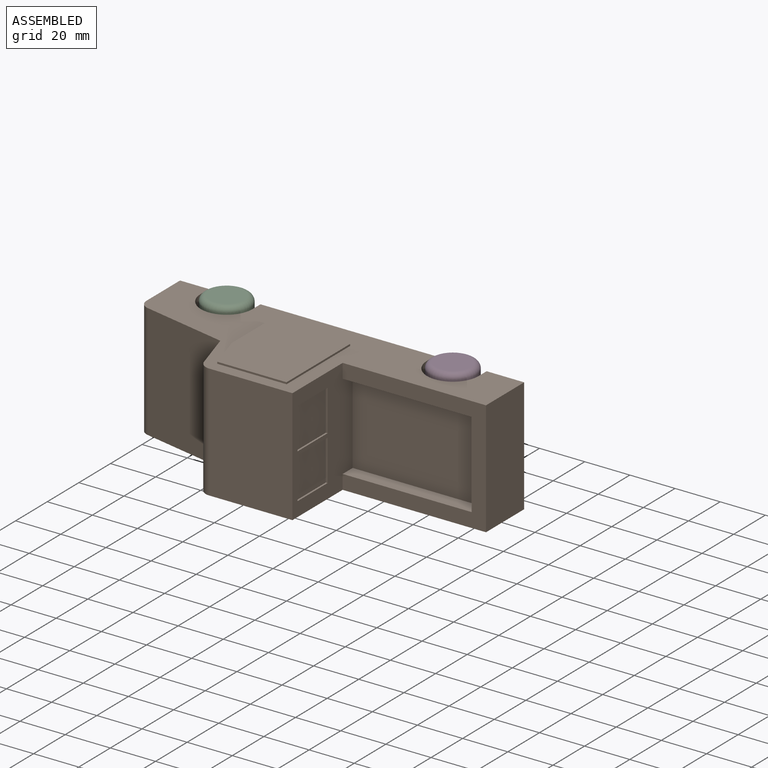
[diagram: assembled view]
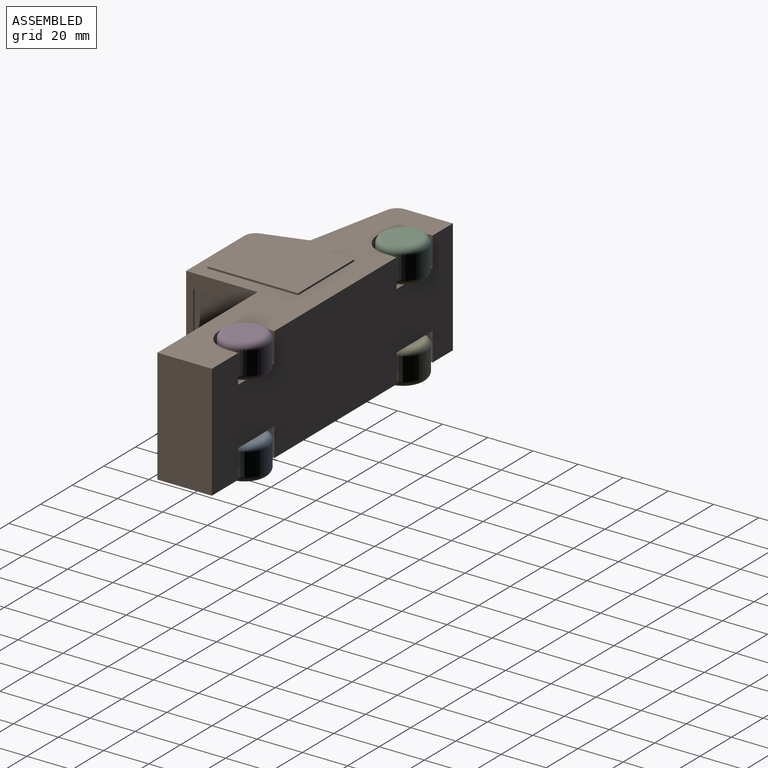
[diagram: assembled view, second angle]
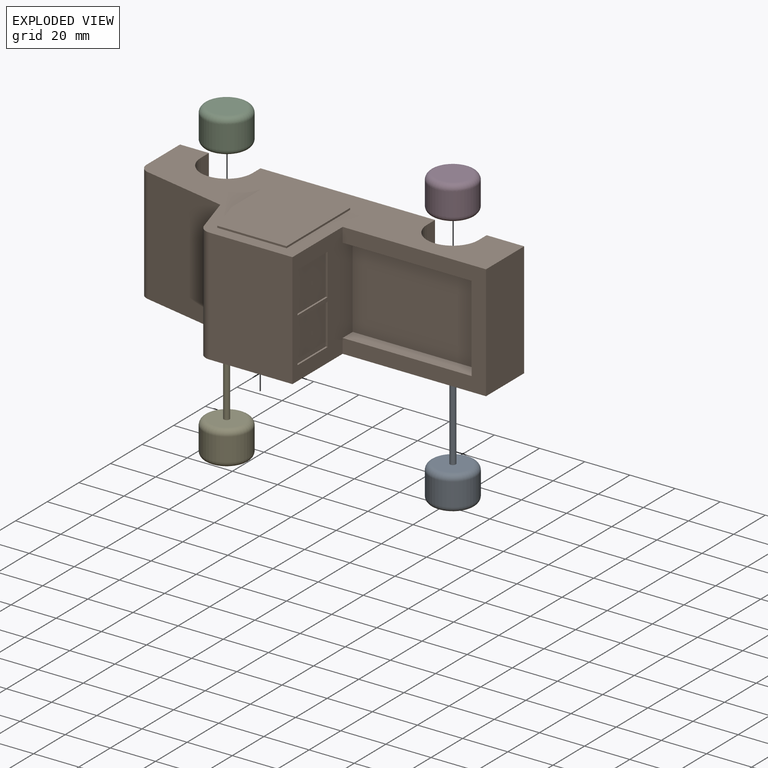
[diagram: exploded view]
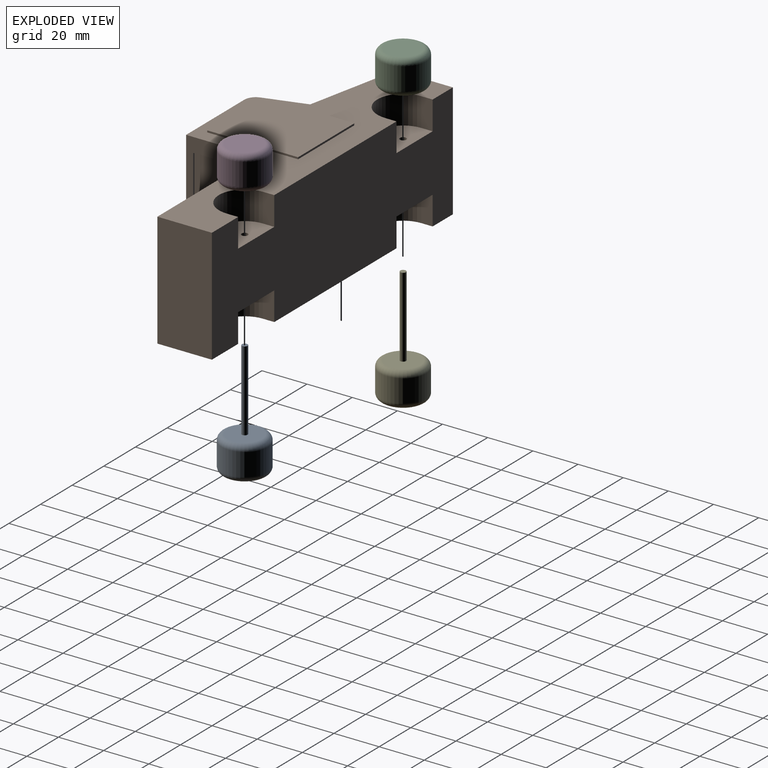
[diagram: exploded view, second angle]
ASSEMBLY  parts=5 mates=4
PART A: 7 faces, bbox 22x22x50.8 mm
  f0: cylinder r=10.16mm len=20.32mm, axis (0,0,-1), area 648.6mm2, adj f3,f4
  f1: plane 15.24x15.24mm, normal (0,0,1), area 177.3mm2, adj f4,f5
  f2: plane 15.24x15.24mm, normal (0,0,-1), area 182.4mm2, adj f3
  f3: torus R=7.62mm, axis (0,0,1), area 231.6mm2, adj f0,f2
  f4: torus R=7.62mm, axis (0,0,1), area 231.6mm2, adj f0,f1
  f5: cylinder r=1.27mm len=35.56mm, axis (0,0,-1), area 283.8mm2, adj f1,f6
  f6: plane 2.54x2.54mm, normal (0,0,1), area 5.1mm2, adj f5
PART B: 110 faces, bbox 154.9x52.4x55.9 mm
  f0: cylinder r=11.43mm len=22.86mm, axis (0,1,0), area 456mm2, adj f3,f98,f103,f104
  f1: cylinder r=11.43mm len=22.86mm, axis (0,1,0), area 456mm2, adj f3,f95,f105,f106
  f2: plane 152.4x55.88mm, normal (0,-1,0), area 3295.4mm2, adj f4,f5,f6,f7,f8,f9,f10,f69
  f3: plane 152.4x55.88mm, normal (0,1,0), area 3295.6mm2, adj f0,f1,f4,f5,f6,f7,f8,f9
  f4: plane 50.8x38.1mm, normal (1,0,0), area 1162.9mm2, adj f2,f3,f7,f8,f11,f13,f14,f83
  f5: plane 50.8x18.27mm, normal (-0.96,0,0.29), area 251mm2, adj f2,f3,f9,f54,f55,f56,f57,f58
  f6: plane 50.8x24.13mm, normal (1,0,0), area 1225.8mm2, adj f2,f3,f7,f107
  f7: plane 63.5x50.8mm, normal (0,0,1), area 1048.4mm2, adj f2,f3,f4,f6,f11,f12,f13
  f8: plane 50.8x36.87mm, normal (0,0,1), area 1873mm2, adj f2,f3,f4,f69
  f9: plane 50.8x37.6mm, normal (-0.2,0,0.98), area 1951.5mm2, adj f2,f3,f5,f70
  f10: plane 50.8x21.16mm, normal (-1,0,0), area 877.7mm2, adj f2,f3,f15,f16,f17,f42,f50,f52
  f11: plane 57.15x6.35mm, normal (0,1,0), area 362.9mm2, adj f4,f7,f12,f14
  f12: plane 38.1x6.35mm, normal (-1,0,0), area 241.9mm2, adj f7,f11,f13,f14
  f13: plane 57.15x6.35mm, normal (0,-1,0), area 362.9mm2, adj f4,f7,f12,f14
  f14: plane 57.15x38.1mm, normal (0,0,1), area 2177.4mm2, adj f4,f11,f12,f13
  f15: plane 6.6x2.54mm, normal (0,-1,0), area 16.8mm2, adj f10,f16,f42,f43
  f16: plane 23.11x2.54mm, normal (0,0,1), area 58.7mm2, adj f10,f15,f17,f43
  f17: plane 6.6x2.54mm, normal (0,1,0), area 16.8mm2, adj f10,f16,f42,f43
  f18: plane 3.52x2.54mm, normal (0,0,-1), area 8.9mm2, adj f19,f36,f43,f44
  f19: plane 5.08x2.54mm, normal (0,1,0), area 12.9mm2, adj f18,f20,f43,f44
  f20: plane 3.52x2.54mm, normal (0,0,1), area 8.9mm2, adj f19,f36,f43,f44
  f21: plane 5.08x2.54mm, normal (0,1,0), area 12.9mm2, adj f22,f37,f43,f45
  f22: plane 3.58x2.54mm, normal (0,0,1), area 9.1mm2, adj f21,f23,f43,f45
  f23: plane 5.08x2.54mm, normal (0,-1,0), area 12.9mm2, adj f22,f37,f43,f45
  f24: plane 5.08x2.54mm, normal (0,1,0), area 12.9mm2, adj f25,f38,f43,f46
  f25: plane 2.54x2.4mm, normal (0,0,1), area 6.1mm2, adj f24,f26,f43,f46
  f26: plane 5.08x2.54mm, normal (0,-1,0), area 12.9mm2, adj f25,f38,f43,f46
  f27: plane 5.08x2.54mm, normal (0,1,0), area 12.9mm2, adj f28,f39,f43,f47
  f28: plane 2.54x2.4mm, normal (0,0,1), area 6.1mm2, adj f27,f29,f43,f47
  f29: plane 5.08x2.54mm, normal (0,-1,0), area 12.9mm2, adj f28,f39,f43,f47
  f30: plane 5.08x2.54mm, normal (0,1,0), area 12.9mm2, adj f31,f40,f43,f48
  f31: plane 2.54x2.4mm, normal (0,0,1), area 6.1mm2, adj f30,f32,f43,f48
  f32: plane 5.08x2.54mm, normal (0,-1,0), area 12.9mm2, adj f31,f40,f43,f48
  f33: plane 5.08x2.54mm, normal (0,1,0), area 12.9mm2, adj f34,f41,f43,f49
  f34: plane 2.54x2.4mm, normal (0,0,1), area 6.1mm2, adj f33,f35,f43,f49
  f35: plane 5.08x2.54mm, normal (0,-1,0), area 12.9mm2, adj f34,f41,f43,f49
  f36: plane 5.08x2.54mm, normal (0,-1,0), area 12.9mm2, adj f18,f20,f43,f44
  f37: plane 3.58x2.54mm, normal (0,0,-1), area 9.1mm2, adj f21,f23,f43,f45
  f38: plane 2.54x2.4mm, normal (0,0,-1), area 6.1mm2, adj f24,f26,f43,f46
  f39: plane 2.54x2.4mm, normal (0,0,-1), area 6.1mm2, adj f27,f29,f43,f47
  f40: plane 2.54x2.4mm, normal (0,0,-1), area 6.1mm2, adj f30,f32,f43,f48
  f41: plane 2.54x2.4mm, normal (0,0,-1), area 6.1mm2, adj f33,f35,f43,f49
  f42: plane 23.11x2.54mm, normal (0,0,-1), area 58.7mm2, adj f10,f15,f17,f43
  f43: plane 23.11x6.6mm, normal (-1,0,0), area 67.9mm2, adj f15,f16,f17,f18,f19,f20,f21,f22
  f44: plane 5.08x3.52mm, normal (-1,0,0), area 17.9mm2, adj f18,f19,f20,f36
  f45: plane 5.08x3.58mm, normal (-1,0,0), area 18.2mm2, adj f21,f22,f23,f37
  f46: plane 5.08x2.4mm, normal (-1,0,0), area 12.2mm2, adj f24,f25,f26,f38
  f47: plane 5.08x2.4mm, normal (-1,0,0), area 12.2mm2, adj f27,f28,f29,f39
  f48: plane 5.08x2.4mm, normal (-1,0,0), area 12.2mm2, adj f30,f31,f32,f40
  f49: plane 5.08x2.4mm, normal (-1,0,0), area 12.2mm2, adj f33,f34,f35,f41
  f50: cylinder r=2.67mm len=5.33mm, axis (1,0,0), area 21.3mm2, adj f10,f51
  f51: plane 5.33x5.33mm, normal (-1,0,0), area 22.3mm2, adj f50
  f52: cylinder r=2.67mm len=5.33mm, axis (1,0,0), area 21.3mm2, adj f10,f53
  f53: plane 5.33x5.33mm, normal (-1,0,0), area 22.3mm2, adj f52
  f54: plane 6.4x2.63mm, normal (-0.06,0.98,-0.2), area 5.3mm2, adj f5,f55,f67,f68
  f55: plane 4.05x1.92mm, normal (-0.1,0.94,-0.32), area 3.4mm2, adj f5,f54,f56,f68
  f56: plane 4.05x2.78mm, normal (0.17,-0.82,0.55), area 3.9mm2, adj f5,f55,f57,f68
  f57: plane 6.4x2.63mm, normal (0.06,-0.98,0.2), area 5.3mm2, adj f5,f56,f58,f68
  f58: plane 14.4x0.77mm, normal (0.29,0,0.96), area 11.5mm2, adj f5,f57,f59,f68
  f59: plane 6.4x2.63mm, normal (-0.06,0.98,-0.2), area 5.3mm2, adj f5,f58,f60,f68
  f60: plane 4.05x1.92mm, normal (-0.1,0.94,-0.32), area 3.4mm2, adj f5,f59,f61,f68
  f61: plane 4.05x2.78mm, normal (0.17,-0.82,0.55), area 3.9mm2, adj f5,f60,f62,f68
  f62: plane 6.4x2.63mm, normal (0.06,-0.98,0.2), area 5.3mm2, adj f5,f61,f63,f68
  f63: plane 14.42x0.77mm, normal (0.29,0,0.96), area 11.5mm2, adj f5,f62,f64,f68
  f64: plane 16.96x5.84mm, normal (0,1,0), area 14mm2, adj f5,f63,f65,f68,f69
  f65: plane 45.72x0.6mm, normal (-0.29,0,-0.96), area 28.9mm2, adj f64,f66,f68,f69
  f66: plane 16.96x5.84mm, normal (0,-1,0), area 14mm2, adj f5,f65,f67,f68,f69
  f67: plane 14.21x0.77mm, normal (0.29,0,0.96), area 11.4mm2, adj f5,f54,f66,f68
  f68: plane 45.72x16.78mm, normal (-0.96,0,0.29), area 778.1mm2, adj f54,f55,f56,f57,f58,f59,f60,f61
  f69: cylinder r=5.08mm len=50.8mm, axis (0,1,0), area 269.6mm2, adj f2,f3,f5,f8,f64,f65,f66
  f70: cylinder r=5.08mm len=50.8mm, axis (0,1,0), area 352.2mm2, adj f2,f3,f9,f10
  f71: plane 30.71x0.8mm, normal (0,0,1), area 24.6mm2, adj f2,f72,f75,f76
  f72: plane 16.08x4.86mm, normal (-0.96,0,0.29), area 13.4mm2, adj f2,f71,f73,f76
  f73: plane 24.13x0.8mm, normal (-1,0,0), area 19.3mm2, adj f2,f72,f74,f76
  f74: plane 35.56x0.8mm, normal (0,0,-1), area 28.5mm2, adj f2,f73,f75,f76
  f75: plane 40.21x0.8mm, normal (1,0,0), area 32.2mm2, adj f2,f71,f74,f76
  f76: plane 40.21x35.57mm, normal (0,-1,0), area 1390.9mm2, adj f71,f72,f73,f74,f75
  f77: plane 30.71x0.8mm, normal (0,0,1), area 24.6mm2, adj f3,f78,f81,f82
  f78: plane 40.21x0.8mm, normal (1,0,0), area 32.2mm2, adj f3,f77,f79,f82
  f79: plane 35.56x0.8mm, normal (0,0,-1), area 28.5mm2, adj f3,f78,f80,f82
  f80: plane 24.13x0.8mm, normal (-1,0,0), area 19.3mm2, adj f3,f79,f81,f82
  f81: plane 16.07x4.85mm, normal (-0.96,0,0.29), area 13.4mm2, adj f3,f77,f80,f82
  f82: plane 40.21x35.56mm, normal (0,1,0), area 1390.7mm2, adj f77,f78,f79,f80,f81
  f83: plane 18.16x0.8mm, normal (0,0,1), area 14.5mm2, adj f4,f84,f86,f87
  f84: plane 19.05x0.8mm, normal (0,-1,0), area 15.2mm2, adj f4,f83,f85,f87
  f85: plane 18.16x0.8mm, normal (0,0,-1), area 14.5mm2, adj f4,f84,f86,f87
  f86: plane 19.05x0.8mm, normal (0,1,0), area 15.2mm2, adj f4,f83,f85,f87
  f87: plane 19.05x18.16mm, normal (1,0,0), area 346mm2, adj f83,f84,f85,f86
  f88: plane 18.16x0.8mm, normal (0,0,1), area 14.5mm2, adj f4,f89,f91,f92
  f89: plane 19.05x0.8mm, normal (0,-1,0), area 15.2mm2, adj f4,f88,f90,f92
  f90: plane 18.16x0.8mm, normal (0,0,-1), area 14.5mm2, adj f4,f89,f91,f92
  f91: plane 19.05x0.8mm, normal (0,1,0), area 15.2mm2, adj f4,f88,f90,f92
  f92: plane 19.05x18.16mm, normal (1,0,0), area 346mm2, adj f88,f89,f90,f91
  f93: cylinder r=11.43mm len=22.86mm, axis (0,1,0), area 456mm2, adj f2,f97,f101,f102
  f94: cylinder r=11.43mm len=22.86mm, axis (0,1,0), area 456mm2, adj f2,f96,f99,f100
  f95: plane 22.86x16.51mm, normal (0,1,0), area 315.2mm2, adj f1,f105,f106,f107,f109
  f96: plane 22.86x16.51mm, normal (0,-1,0), area 315.2mm2, adj f94,f99,f100,f107,f109
  f97: plane 22.86x16.51mm, normal (0,-1,0), area 315.2mm2, adj f93,f101,f102,f107,f108
  f98: plane 22.86x16.51mm, normal (0,1,0), area 315.2mm2, adj f0,f103,f104,f107,f108
  f99: plane 12.7x5.08mm, normal (-1,0,0), area 64.5mm2, adj f2,f94,f96,f107
  f100: plane 12.7x5.08mm, normal (1,0,0), area 64.5mm2, adj f2,f94,f96,f107
  f101: plane 12.7x5.08mm, normal (-1,0,0), area 64.5mm2, adj f2,f93,f97,f107
  f102: plane 12.7x5.08mm, normal (1,0,0), area 64.5mm2, adj f2,f93,f97,f107
  f103: plane 12.7x5.08mm, normal (1,0,0), area 64.5mm2, adj f0,f3,f98,f107
  f104: plane 12.7x5.08mm, normal (-1,0,0), area 64.5mm2, adj f0,f3,f98,f107
  f105: plane 12.7x5.08mm, normal (1,0,0), area 64.5mm2, adj f1,f3,f95,f107
  f106: plane 12.7x5.08mm, normal (-1,0,0), area 64.5mm2, adj f1,f3,f95,f107
  f107: plane 152.4x50.8mm, normal (0,0,-1), area 6580.6mm2, adj f2,f3,f6,f10,f95,f96,f97,f98
  f108: cylinder r=1.4mm len=25.4mm, axis (0,1,0), area 223mm2, adj f97,f98
  f109: cylinder r=1.4mm len=25.4mm, axis (0,1,0), area 223mm2, adj f95,f96
PART C: 7 faces, bbox 22x22x15.2 mm
  f0: cylinder r=10.16mm len=20.32mm, axis (0,0,-1), area 648.6mm2, adj f3,f4
  f1: plane 15.24x15.24mm, normal (0,0,1), area 176.3mm2, adj f4,f5
  f2: plane 15.24x15.24mm, normal (0,0,-1), area 182.4mm2, adj f3
  f3: torus R=7.62mm, axis (0,0,1), area 231.6mm2, adj f0,f2
  f4: torus R=7.62mm, axis (0,0,1), area 231.6mm2, adj f0,f1
  f5: cylinder r=1.4mm len=10.16mm, axis (0,0,1), area 89.2mm2, adj f1,f6
  f6: plane 2.79x2.79mm, normal (0,0,1), area 6.1mm2, adj f5
PART D: same geometry as C
PART E: same geometry as A
PLACE A t=(27.46,-48.3,-34.89)mm
PLACE B rot(axis=(1,0,0),90deg) t=(-28.15,-48.3,18.45)mm
PLACE C rot(axis=(1,0,0),180deg) t=(-72.7,-48.3,20.99)mm
PLACE D rot(axis=(1,0,0),180deg) t=(27.46,-48.3,20.99)mm
PLACE E t=(-72.7,-48.3,-34.89)mm
MATE fastened C.f5 <-> E.f5  axis (0,0,-1) through (-72.7,-48.3,15.91)mm
MATE fastened B.f108 <-> E.f0  axis (0,0,-1) through (-72.7,-48.3,-19.65)mm
MATE fastened A.f0 <-> B.f1  axis (0,0,1) through (27.46,-48.3,-19.65)mm
MATE fastened D.f5 <-> A.f5  axis (0,0,-1) through (27.46,-48.3,15.91)mm
